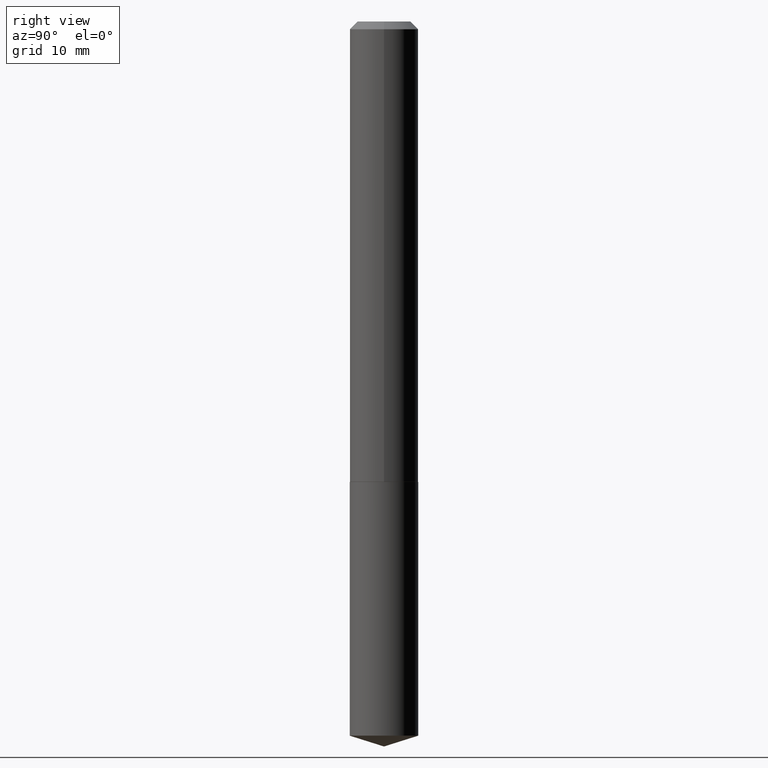
[diagram: clean part render]
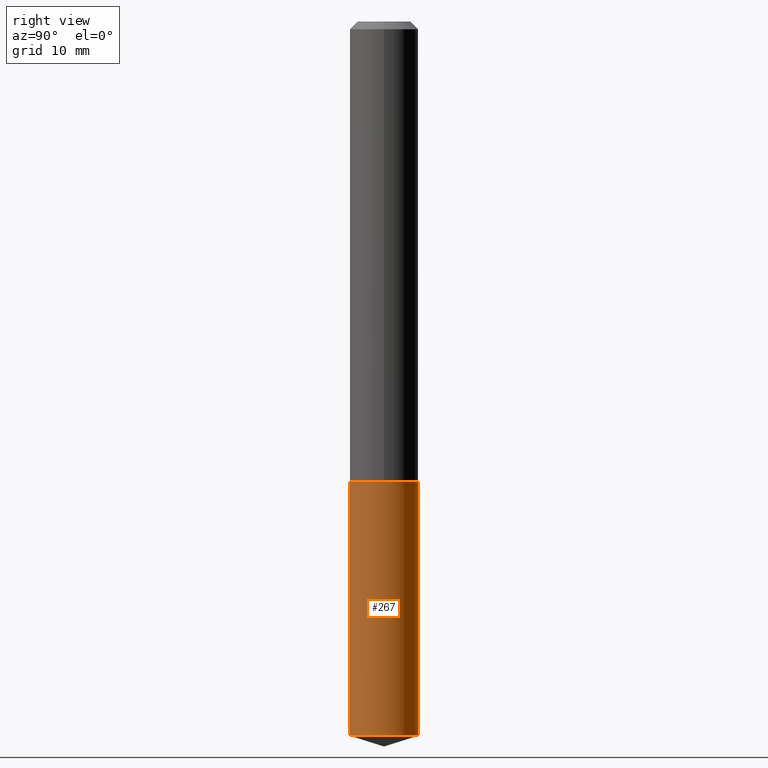
[diagram: same view with one face highlighted and labeled with its STEP entity id]
A machine part, right view. The second image highlights one B-rep face of the part: STEP entity #267.
In plain terms, the highlighted cylindrical surface (edge-blend (fillet) strip) has radius 3.5001 mm, axis along (-0, 0, 1).
Its self-contained STEP definition (entity closure, byte-faithful):
#16 = CARTESIAN_POINT ( 'NONE',  ( 4.525095478964976833E-29, -6.460637069395356787E-15, -1.850400000000000045 ) ) ;
#27 = VERTEX_POINT ( 'NONE', #224 ) ;
#28 = CARTESIAN_POINT ( 'NONE',  ( 9.791278898774632598E-16, 0.1377999999999935665, -1.850400000000000489 ) ) ;
#39 = CARTESIAN_POINT ( 'NONE',  ( -9.622522569851223147E-16, -0.1378000000000064729, -1.850399999999999379 ) ) ;
#74 = DIRECTION ( 'NONE',  ( -6.982962677686265922E-15, -1.000000000000000000, 3.964946289788480896E-15 ) ) ;
#88 = EDGE_CURVE ( 'NONE', #248, #27, #292, .T. ) ;
#89 = ORIENTED_EDGE ( 'NONE', *, *, #226, .F. ) ;
#142 = CARTESIAN_POINT ( 'NONE',  ( 7.018280654488695032E-29, -1.002052217572859290E-14, -2.869951826892477520 ) ) ;
#144 = CARTESIAN_POINT ( 'NONE',  ( -9.622522569851223147E-16, -0.1378000000000064729, -1.850399999999999379 ) ) ;
#145 = CIRCLE ( 'NONE', #364, 0.1378000000000000058 ) ;
#156 = ORIENTED_EDGE ( 'NONE', *, *, #88, .F. ) ;
#157 = EDGE_LOOP ( 'NONE', ( #387, #307, #156, #89 ) ) ;
#159 = DIRECTION ( 'NONE',  ( -2.445373653169523925E-29, 3.491617603377276597E-15, 1.000000000000000000 ) ) ;
#162 = EDGE_CURVE ( 'NONE', #335, #27, #309, .T. ) ;
#172 = DIRECTION ( 'NONE',  ( -2.445373653169523645E-29, 3.491617603377276597E-15, 1.000000000000000000 ) ) ;
#192 = CARTESIAN_POINT ( 'NONE',  ( 4.525095478964976833E-29, -6.460637069395356787E-15, -1.850400000000000045 ) ) ;
#221 = CARTESIAN_POINT ( 'NONE',  ( -9.622522569850970711E-16, -0.1378000000000100256, -2.869951826892476632 ) ) ;
#224 = CARTESIAN_POINT ( 'NONE',  ( 9.791278898774887005E-16, 0.1377999999999935665, -1.850400000000000489 ) ) ;
#226 = EDGE_CURVE ( 'NONE', #308, #248, #381, .T. ) ;
#229 = DIRECTION ( 'NONE',  ( -2.445373653169523925E-29, 3.491617603377276597E-15, 1.000000000000000000 ) ) ;
#234 = EDGE_CURVE ( 'NONE', #308, #335, #145, .T. ) ;
#248 = VERTEX_POINT ( 'NONE', #39 ) ;
#260 = CARTESIAN_POINT ( 'NONE',  ( 9.791278898774883061E-16, 0.1377999999999899583, -2.869951826892477964 ) ) ;
#267 = ADVANCED_FACE ( 'NONE', ( #268 ), #293, .T. ) ;
#268 = FACE_OUTER_BOUND ( 'NONE', #157, .T. ) ;
#276 = VECTOR ( 'NONE', #159, 39.37007874015748143 ) ;
#292 = CIRCLE ( 'NONE', #330, 0.1378000000000000058 ) ;
#293 = CYLINDRICAL_SURFACE ( 'NONE', #301, 0.1378000000000000058 ) ;
#301 = AXIS2_PLACEMENT_3D ( 'NONE', #16, #354, #74 ) ;
#307 = ORIENTED_EDGE ( 'NONE', *, *, #162, .T. ) ;
#308 = VERTEX_POINT ( 'NONE', #221 ) ;
#309 = LINE ( 'NONE', #28, #276 ) ;
#310 = VECTOR ( 'NONE', #229, 39.37007874015748143 ) ;
#311 = DIRECTION ( 'NONE',  ( -2.445373653169523645E-29, 3.491617603377276597E-15, 1.000000000000000000 ) ) ;
#315 = DIRECTION ( 'NONE',  ( -6.982962677686265922E-15, -1.000000000000000000, 3.964946289788480896E-15 ) ) ;
#330 = AXIS2_PLACEMENT_3D ( 'NONE', #192, #311, #315 ) ;
#335 = VERTEX_POINT ( 'NONE', #260 ) ;
#354 = DIRECTION ( 'NONE',  ( -2.445373653169523645E-29, 3.491617603377276597E-15, 1.000000000000000000 ) ) ;
#364 = AXIS2_PLACEMENT_3D ( 'NONE', #142, #172, #375 ) ;
#375 = DIRECTION ( 'NONE',  ( -6.982962677686265922E-15, -1.000000000000000000, 3.964946289788480896E-15 ) ) ;
#381 = LINE ( 'NONE', #144, #310 ) ;
#387 = ORIENTED_EDGE ( 'NONE', *, *, #234, .T. ) ;